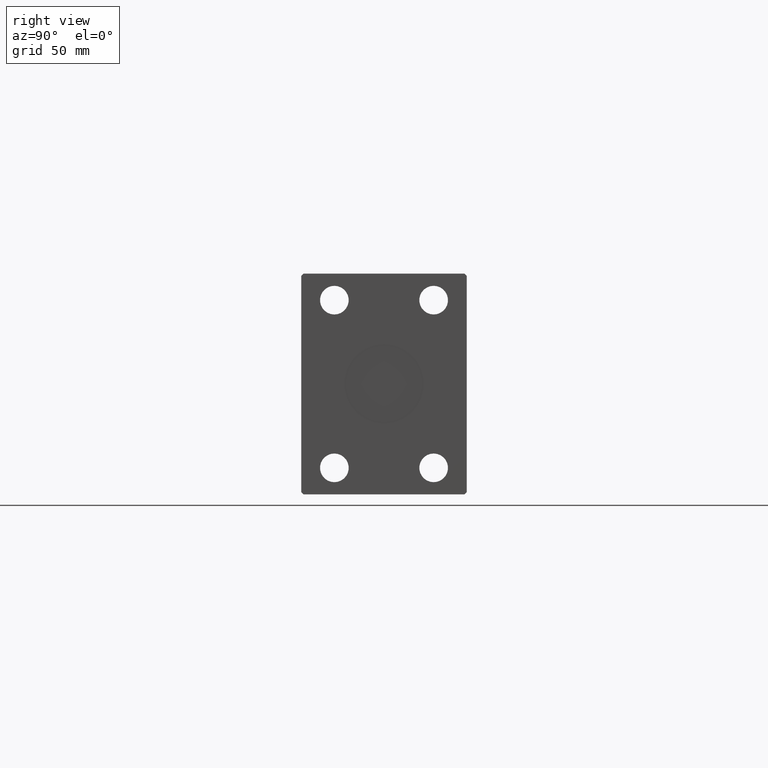
[diagram: clean part render]
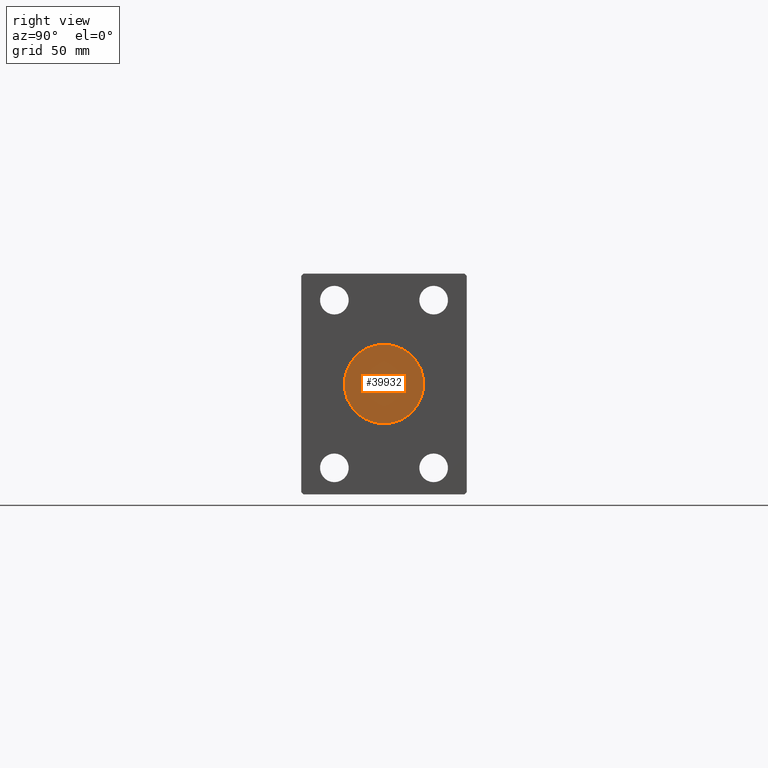
[diagram: same view with one face highlighted and labeled with its STEP entity id]
A machine part, right view. The second image highlights one B-rep face of the part: STEP entity #39932.
In plain terms, the highlighted planar face has unit normal (1, 0, 0).
Its self-contained STEP definition (entity closure, byte-faithful):
#1834 = DIRECTION ( 'NONE',  ( 0.000000000000000000, 0.000000000000000000, -1.000000000000000000 ) ) ;
#4300 = DIRECTION ( 'NONE',  ( 1.000000000000000000, 0.000000000000000000, 0.000000000000000000 ) ) ;
#4974 = AXIS2_PLACEMENT_3D ( 'NONE', #8278, #40929, #1834 ) ;
#8278 = CARTESIAN_POINT ( 'NONE',  ( 306.8000000000000114, 0.000000000000000000, 0.000000000000000000 ) ) ;
#10331 = DIRECTION ( 'NONE',  ( 0.000000000000000000, 0.000000000000000000, -1.000000000000000000 ) ) ;
#12374 = EDGE_CURVE ( 'NONE', #27691, #33424, #34810, .T. ) ;
#21338 = DIRECTION ( 'NONE',  ( 0.000000000000000000, 0.000000000000000000, -1.000000000000000000 ) ) ;
#21526 = ORIENTED_EDGE ( 'NONE', *, *, #12374, .T. ) ;
#23779 = ORIENTED_EDGE ( 'NONE', *, *, #32551, .T. ) ;
#25418 = DIRECTION ( 'NONE',  ( 1.000000000000000000, 0.000000000000000000, 0.000000000000000000 ) ) ;
#26725 = CARTESIAN_POINT ( 'NONE',  ( 306.8000000000000114, 2.204364238465235428E-15, 18.00000000000000000 ) ) ;
#27256 = AXIS2_PLACEMENT_3D ( 'NONE', #39545, #4300, #10331 ) ;
#27691 = VERTEX_POINT ( 'NONE', #35004 ) ;
#28321 = CIRCLE ( 'NONE', #4974, 18.00000000000000000 ) ;
#28648 = PLANE ( 'NONE',  #35227 ) ;
#29006 = EDGE_LOOP ( 'NONE', ( #21526, #23779 ) ) ;
#32551 = EDGE_CURVE ( 'NONE', #33424, #27691, #28321, .T. ) ;
#33424 = VERTEX_POINT ( 'NONE', #26725 ) ;
#34810 = CIRCLE ( 'NONE', #27256, 18.00000000000000000 ) ;
#35004 = CARTESIAN_POINT ( 'NONE',  ( 306.8000000000000114, 0.000000000000000000, -18.00000000000000000 ) ) ;
#35088 = FACE_OUTER_BOUND ( 'NONE', #29006, .T. ) ;
#35227 = AXIS2_PLACEMENT_3D ( 'NONE', #41742, #25418, #21338 ) ;
#39545 = CARTESIAN_POINT ( 'NONE',  ( 306.8000000000000114, 0.000000000000000000, 0.000000000000000000 ) ) ;
#39932 = ADVANCED_FACE ( 'NONE', ( #35088 ), #28648, .T. ) ;
#40929 = DIRECTION ( 'NONE',  ( 1.000000000000000000, 0.000000000000000000, 0.000000000000000000 ) ) ;
#41742 = CARTESIAN_POINT ( 'NONE',  ( 306.8000000000000114, 0.000000000000000000, 0.000000000000000000 ) ) ;